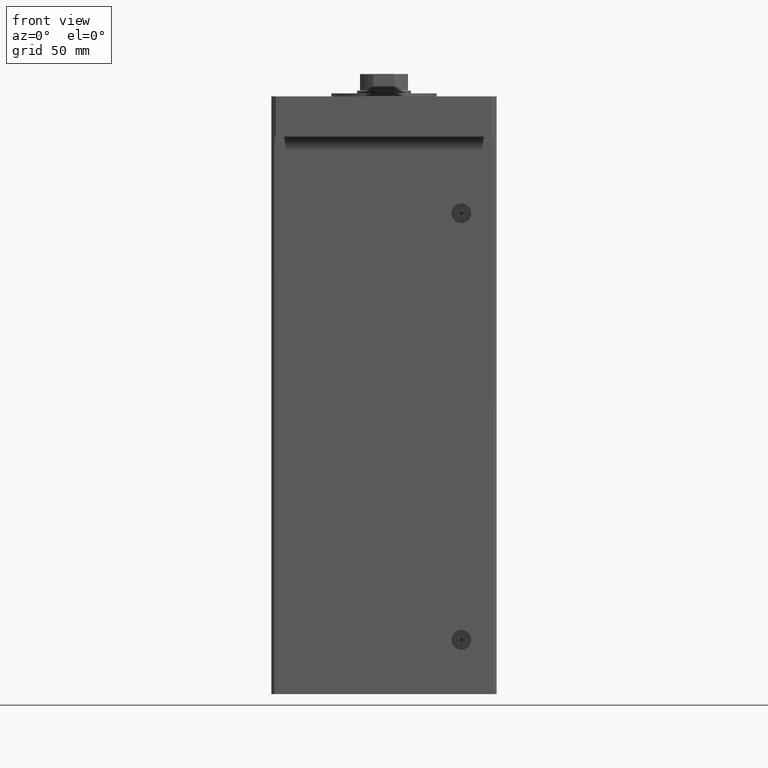
[diagram: clean part render]
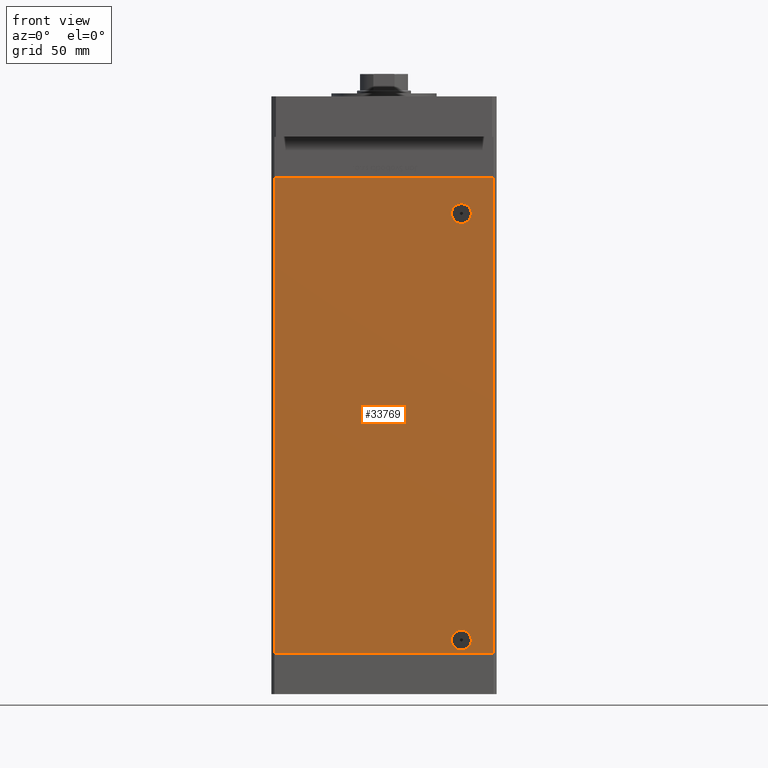
[diagram: same view with one face highlighted and labeled with its STEP entity id]
A machine part, front view. The second image highlights one B-rep face of the part: STEP entity #33769.
In plain terms, the highlighted planar face has unit normal (0, 1, 0).
Its self-contained STEP definition (entity closure, byte-faithful):
#1393 = ORIENTED_EDGE ( 'NONE', *, *, #44240, .F. ) ;
#1583 = CARTESIAN_POINT ( 'NONE',  ( -72.99999999999998579, -62.50000000000000000, 317.0000000000000000 ) ) ;
#2560 = VERTEX_POINT ( 'NONE', #30600 ) ;
#3538 = VECTOR ( 'NONE', #36666, 1000.000000000000000 ) ;
#4027 = CARTESIAN_POINT ( 'NONE',  ( 51.49999999999998579, -62.50000000000000000, 9.000000000000007105 ) ) ;
#4450 = EDGE_LOOP ( 'NONE', ( #49628, #23871 ) ) ;
#5405 = ORIENTED_EDGE ( 'NONE', *, *, #31152, .F. ) ;
#6905 = CARTESIAN_POINT ( 'NONE',  ( 51.49999999999998579, -62.50000000000000000, 9.000000000000007105 ) ) ;
#7145 = ORIENTED_EDGE ( 'NONE', *, *, #14704, .T. ) ;
#9424 = DIRECTION ( 'NONE',  ( 1.000000000000000000, 0.000000000000000000, 0.000000000000000000 ) ) ;
#9609 = VERTEX_POINT ( 'NONE', #49764 ) ;
#9918 = VECTOR ( 'NONE', #53262, 1000.000000000000000 ) ;
#10301 = CIRCLE ( 'NONE', #31943, 6.579999999999994742 ) ;
#11747 = AXIS2_PLACEMENT_3D ( 'NONE', #1583, #38150, #29733 ) ;
#11931 = EDGE_CURVE ( 'NONE', #20654, #28943, #10301, .T. ) ;
#12377 = LINE ( 'NONE', #37012, #9918 ) ;
#12443 = FACE_BOUND ( 'NONE', #48000, .T. ) ;
#12484 = ORIENTED_EDGE ( 'NONE', *, *, #53540, .T. ) ;
#12974 = FACE_BOUND ( 'NONE', #4450, .T. ) ;
#13964 = EDGE_CURVE ( 'NONE', #52302, #19103, #17285, .T. ) ;
#14261 = DIRECTION ( 'NONE',  ( -0.000000000000000000, 1.000000000000000000, -0.000000000000000000 ) ) ;
#14704 = EDGE_CURVE ( 'NONE', #19103, #52302, #43287, .T. ) ;
#14856 = CARTESIAN_POINT ( 'NONE',  ( 51.49999999999995026, -62.50000000000000000, 299.5799999999999841 ) ) ;
#15817 = CARTESIAN_POINT ( 'NONE',  ( -72.99999999999998579, -62.50000000000000000, 317.0000000000000000 ) ) ;
#15940 = CARTESIAN_POINT ( 'NONE',  ( 51.49999999999995026, -62.50000000000000000, 293.0000000000000000 ) ) ;
#17285 = CIRCLE ( 'NONE', #33719, 6.579999999999975202 ) ;
#17981 = VECTOR ( 'NONE', #31872, 1000.000000000000000 ) ;
#19103 = VERTEX_POINT ( 'NONE', #14856 ) ;
#19996 = DIRECTION ( 'NONE',  ( 0.000000000000000000, 0.000000000000000000, -1.000000000000000000 ) ) ;
#20654 = VERTEX_POINT ( 'NONE', #50706 ) ;
#21601 = LINE ( 'NONE', #33529, #39025 ) ;
#22491 = VERTEX_POINT ( 'NONE', #38414 ) ;
#23489 = EDGE_LOOP ( 'NONE', ( #12484, #1393, #5405, #23898 ) ) ;
#23871 = ORIENTED_EDGE ( 'NONE', *, *, #11931, .F. ) ;
#23898 = ORIENTED_EDGE ( 'NONE', *, *, #53167, .T. ) ;
#25442 = AXIS2_PLACEMENT_3D ( 'NONE', #6905, #47817, #39403 ) ;
#26841 = AXIS2_PLACEMENT_3D ( 'NONE', #15940, #31923, #19996 ) ;
#27550 = EDGE_CURVE ( 'NONE', #28943, #20654, #48829, .T. ) ;
#28942 = PLANE ( 'NONE',  #11747 ) ;
#28943 = VERTEX_POINT ( 'NONE', #48228 ) ;
#29455 = DIRECTION ( 'NONE',  ( 0.000000000000000000, -1.000000000000000000, 0.000000000000000000 ) ) ;
#29733 = DIRECTION ( 'NONE',  ( 0.000000000000000000, -0.000000000000000000, 1.000000000000000000 ) ) ;
#30600 = CARTESIAN_POINT ( 'NONE',  ( -72.99999999999998579, -62.50000000000000000, 0.000000000000000000 ) ) ;
#31152 = EDGE_CURVE ( 'NONE', #9609, #22491, #12377, .T. ) ;
#31872 = DIRECTION ( 'NONE',  ( -0.000000000000000000, -0.000000000000000000, -1.000000000000000000 ) ) ;
#31923 = DIRECTION ( 'NONE',  ( -0.000000000000000000, 1.000000000000000000, -0.000000000000000000 ) ) ;
#31943 = AXIS2_PLACEMENT_3D ( 'NONE', #4027, #29455, #41132 ) ;
#32327 = ORIENTED_EDGE ( 'NONE', *, *, #13964, .T. ) ;
#33529 = CARTESIAN_POINT ( 'NONE',  ( -72.99999999999998579, -62.50000000000000000, 0.000000000000000000 ) ) ;
#33719 = AXIS2_PLACEMENT_3D ( 'NONE', #50831, #14261, #38121 ) ;
#33769 = ADVANCED_FACE ( 'NONE', ( #12974, #49543, #12443 ), #28942, .F. ) ;
#34503 = CARTESIAN_POINT ( 'NONE',  ( 72.99999999999998579, -62.50000000000000000, 0.000000000000000000 ) ) ;
#35558 = VERTEX_POINT ( 'NONE', #34503 ) ;
#36324 = CARTESIAN_POINT ( 'NONE',  ( 51.49999999999995026, -62.50000000000000000, 286.4200000000000159 ) ) ;
#36666 = DIRECTION ( 'NONE',  ( -0.000000000000000000, -0.000000000000000000, -1.000000000000000000 ) ) ;
#37012 = CARTESIAN_POINT ( 'NONE',  ( -72.99999999999998579, -62.50000000000000000, 317.0000000000000000 ) ) ;
#38121 = DIRECTION ( 'NONE',  ( 0.000000000000000000, 0.000000000000000000, -1.000000000000000000 ) ) ;
#38150 = DIRECTION ( 'NONE',  ( 0.000000000000000000, 1.000000000000000000, 0.000000000000000000 ) ) ;
#38414 = CARTESIAN_POINT ( 'NONE',  ( 72.99999999999998579, -62.50000000000000000, 317.0000000000000000 ) ) ;
#39025 = VECTOR ( 'NONE', #9424, 1000.000000000000000 ) ;
#39403 = DIRECTION ( 'NONE',  ( 0.000000000000000000, 0.000000000000000000, -1.000000000000000000 ) ) ;
#39739 = LINE ( 'NONE', #40274, #17981 ) ;
#40274 = CARTESIAN_POINT ( 'NONE',  ( 72.99999999999998579, -62.50000000000000000, 317.0000000000000000 ) ) ;
#41132 = DIRECTION ( 'NONE',  ( 0.000000000000000000, 0.000000000000000000, -1.000000000000000000 ) ) ;
#43287 = CIRCLE ( 'NONE', #26841, 6.579999999999975202 ) ;
#44240 = EDGE_CURVE ( 'NONE', #22491, #35558, #39739, .T. ) ;
#47817 = DIRECTION ( 'NONE',  ( 0.000000000000000000, -1.000000000000000000, 0.000000000000000000 ) ) ;
#48000 = EDGE_LOOP ( 'NONE', ( #32327, #7145 ) ) ;
#48228 = CARTESIAN_POINT ( 'NONE',  ( 51.49999999999998579, -62.50000000000000000, 2.420000000000013252 ) ) ;
#48829 = CIRCLE ( 'NONE', #25442, 6.579999999999994742 ) ;
#48864 = LINE ( 'NONE', #15817, #3538 ) ;
#49543 = FACE_OUTER_BOUND ( 'NONE', #23489, .T. ) ;
#49628 = ORIENTED_EDGE ( 'NONE', *, *, #27550, .F. ) ;
#49764 = CARTESIAN_POINT ( 'NONE',  ( -72.99999999999998579, -62.50000000000000000, 317.0000000000000000 ) ) ;
#50706 = CARTESIAN_POINT ( 'NONE',  ( 51.49999999999998579, -62.50000000000000000, 15.58000000000000362 ) ) ;
#50831 = CARTESIAN_POINT ( 'NONE',  ( 51.49999999999995026, -62.50000000000000000, 293.0000000000000000 ) ) ;
#52302 = VERTEX_POINT ( 'NONE', #36324 ) ;
#53167 = EDGE_CURVE ( 'NONE', #9609, #2560, #48864, .T. ) ;
#53262 = DIRECTION ( 'NONE',  ( 1.000000000000000000, 0.000000000000000000, 0.000000000000000000 ) ) ;
#53540 = EDGE_CURVE ( 'NONE', #2560, #35558, #21601, .T. ) ;